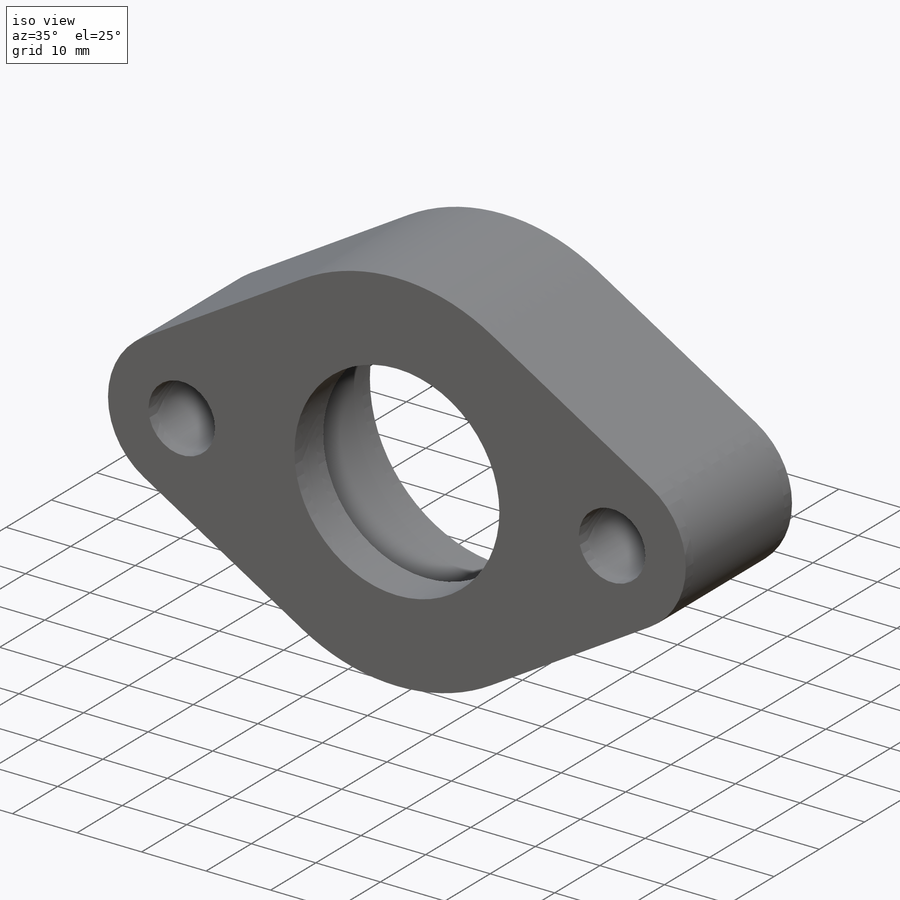
[diagram: iso view]
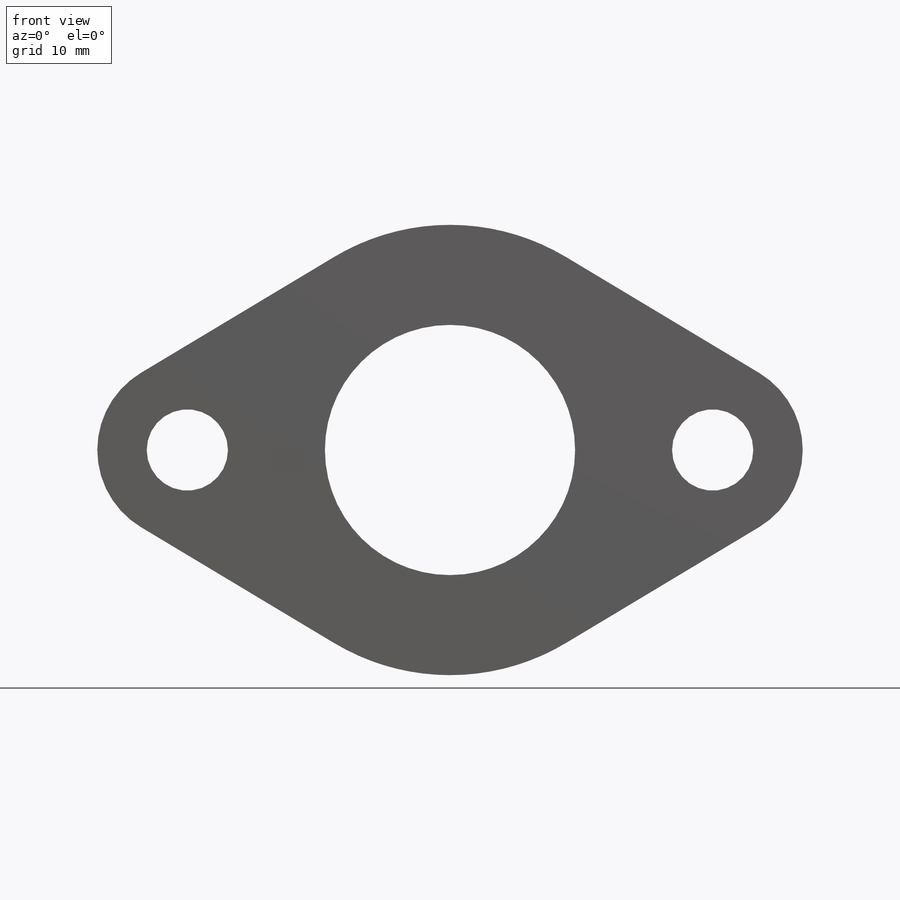
[diagram: front view]
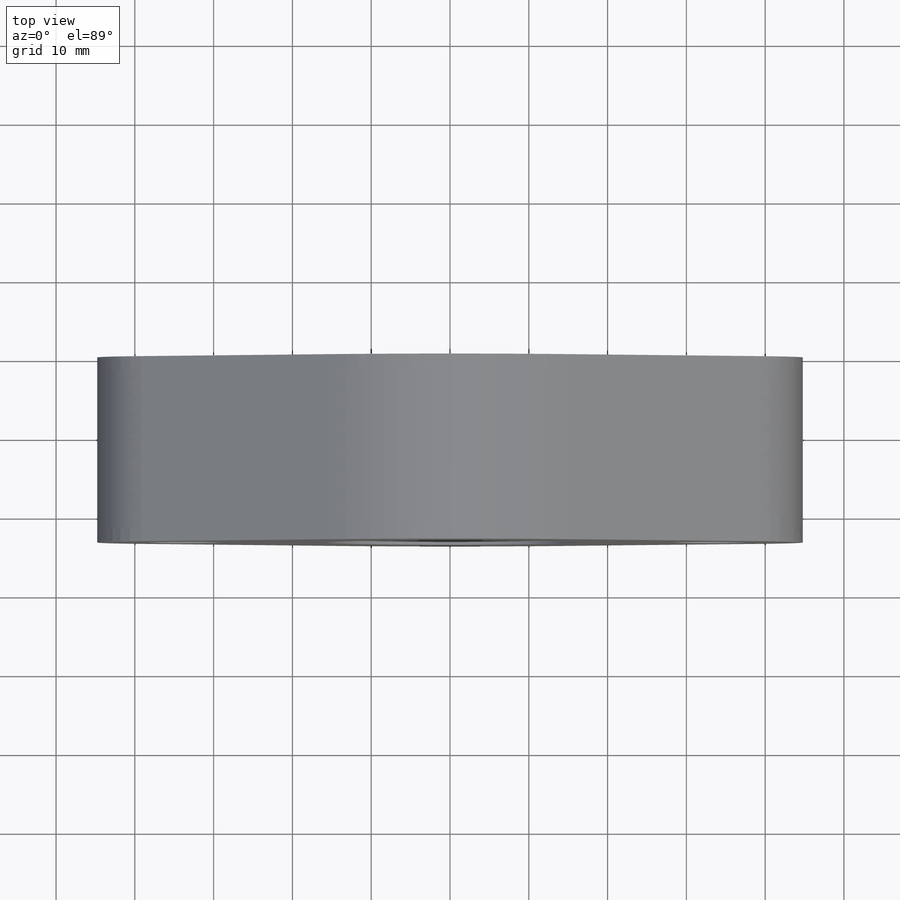
[diagram: top view]
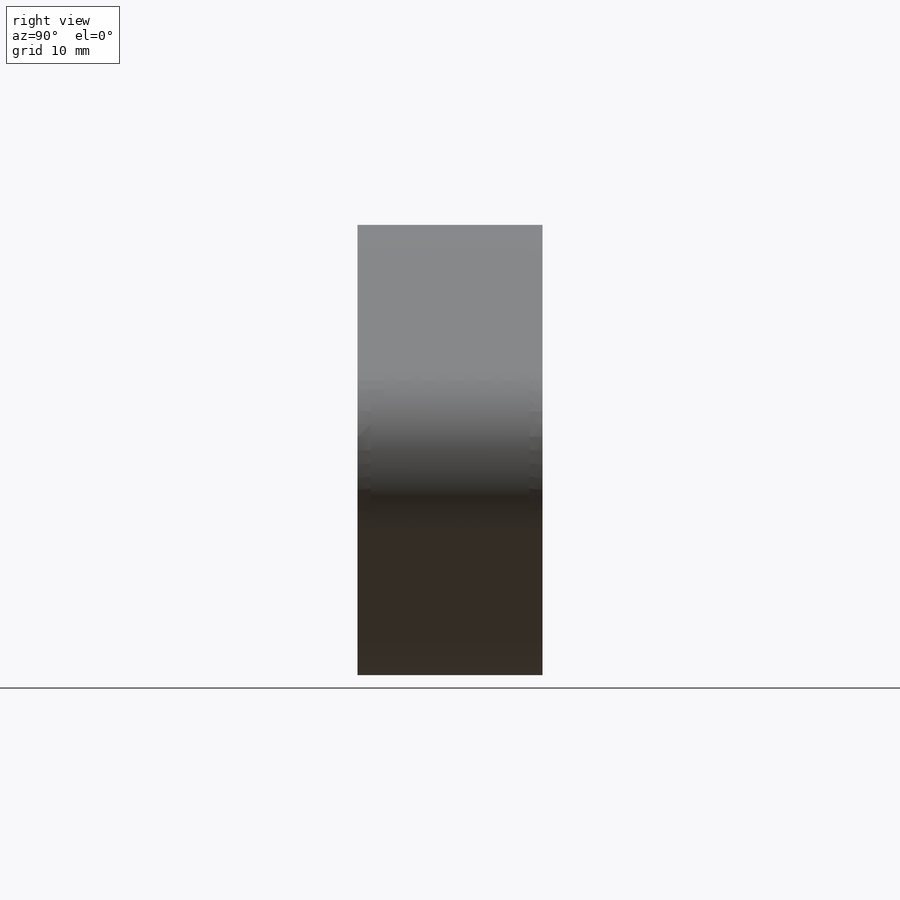
[diagram: right view]
SOLIDWORKS PART (.sldprt)
format: sldprt  version: not decoded by parser v0  size: 400,896 bytes
history: native  units: mm
features: cut_extrude x23, plane x3, sketch x3, material x1, extrude x1, fillet x1 (+11 scaffold rows collapsed)
feature tree (43):
  scaffold x11  (default folders/planes/origin — collapsed)
  material  "304 SSTL"
  plane  "XY"
  plane  "XZ"
  plane  "YZ"
  sketch  "Sketch1"  dims[c1.D1=10.3124mm c1.D2=25.4mm c1.D4=41.275mm c1.D5=57.15mm c2.D2=11.43mm c2.D3=66.675mm]
  extrude  "Extrude1"  Depth=23.495mm
  sketch  "Sketch6"  dims[D1=41.2877mm D2=15.875mm]
  cut_extrude  "Cut-Extrude1"  Depth=17.145mm
  sketch  "Sketch7"  dims[D1=31.75mm]
  cut_extrude  "Cut-Extrude2"  Depth=0 cosForceComp:1=0 cosForceComp:2=0mm cosForceComp:3=9000000mm cosForceComp:4=0mm cosForceComp:5=0mm cosForceComp:6=0mm cosForceTorqueNF=1000mm cosForceCompCheck1=0mm cosForceCompCheck2=0mm cosForceCompCheck3=1000mm cosForceCompCheck4=0mm cosForceCompCheck5=0mm cosForceCompCheck6=0mm Unit=1000mm AnalysisType=0mm
  cut_extrude  "stress:Restraint1-3"  Depth=0mm RestraintType=0mm Value=0mm cosRestraintComp:1=0mm cosRestraintComp:2=0mm cosRestraintComp:3=0mm cosRestraintComp:4=0mm cosRestraintComp:5=0mm cosRestraintComp:6=0mm Unit=3000mm AnalysisType=0mm MeshType=0mm cosRestraintCompCheck1=0mm cosRestraintCompCheck2=0mm cosRestraintCompCheck3=0mm cosRestraintCompCheck4=0mm
  cut_extrude  "stress:Restraint1-4"  Depth=0mm RestraintType=0mm Value=0mm cosRestraintComp:1=0mm cosRestraintComp:2=0mm cosRestraintComp:3=0mm cosRestraintComp:4=0mm cosRestraintComp:5=0mm cosRestraintComp:6=0mm Unit=3000mm AnalysisType=0mm MeshType=0mm cosRestraintCompCheck1=0mm cosRestraintCompCheck2=0mm cosRestraintCompCheck3=0mm cosRestraintCompCheck4=0mm
  cut_extrude  "BSIDef1-3"  Depth=354634836000.0mm ID=354634836000.0mm bsiID=0
  cut_extrude  "stress:Material-3"  Depth=27561887000.0mm cosMaterialEX=27561887000.0mm cosMaterialNUXY=290mm cosMaterialGXY=10879692000.0mm cosMaterialALPX=0.01mm cosMaterialDENS=289.01839mm cosMaterialKX=0.21406mm cosMaterialC=119.44577mm Units=1000mm AnalysisType=0mm MeshType=0mm cosMaterialSIGYLD=29999954mm cosMaterialSIGXT=74999812mm cosMaterialSIGXC=0mm sMaterialSourceName=0mm sMaterialName=0mm
  cut_extrude  "FaceID-1"  Depth=1000mm faceID=1000mm cosFaceID=0
  cut_extrude  "FaceID-2"  Depth=2000mm faceID=2000mm
  cut_extrude  "FaceID-3"  Depth=3000mm faceID=3000mm
  cut_extrude  "FaceID-4"  Depth=4000mm faceID=4000mm
  cut_extrude  "FaceID-5"  Depth=5000mm faceID=5000mm
  cut_extrude  "FaceID-6"  Depth=6000mm faceID=6000mm
  cut_extrude  "FaceID-7"  Depth=7000mm faceID=7000mm
  cut_extrude  "FaceID-8"  Depth=8000mm faceID=8000mm
  cut_extrude  "FaceID-9"  Depth=9000mm faceID=9000mm
  cut_extrude  "FaceID-10"  Depth=10000mm faceID=10000mm
  cut_extrude  "FaceID-11"  Depth=11000mm faceID=11000mm
  cut_extrude  "FaceID-12"  Depth=12000mm faceID=12000mm
  cut_extrude  "FaceID-13"  Depth=13000mm faceID=13000mm
  cut_extrude  "FaceID-14"  Depth=14000mm faceID=14000mm
  cut_extrude  "FaceID-15"  Depth=15000mm faceID=15000mm
  cut_extrude  "FaceID-16"  Depth=16000mm faceID=16000mm
  cut_extrude  "FaceID-17"  Depth=17000mm faceID=17000mm
  fillet  "Fillet1"  Radius=0.127mm
decode coverage: 28 of 28 modeling features carry decoded parameters
note: suppression state not decoded; provenance and decode notes live in map.json
